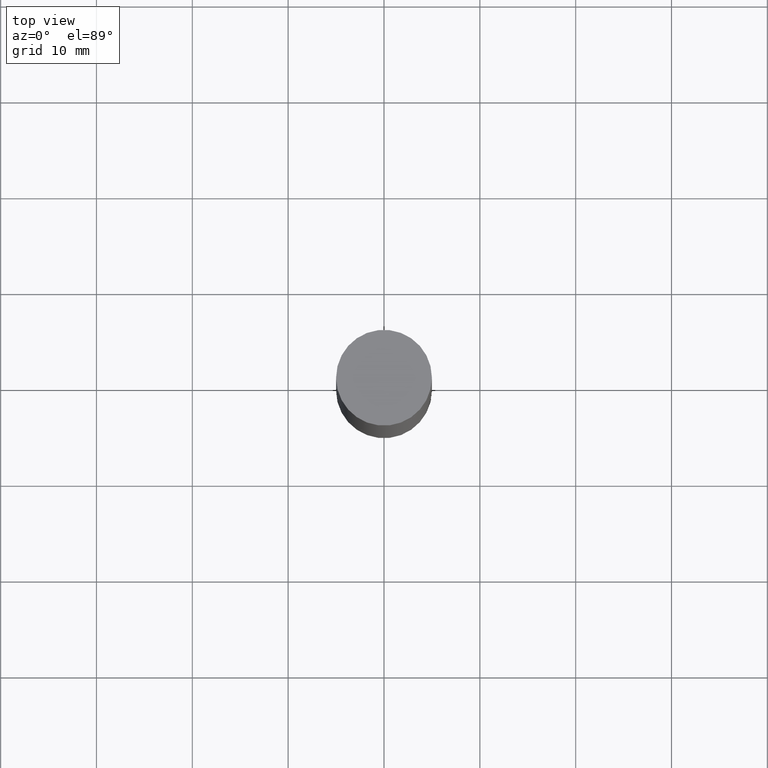
[diagram: clean part render]
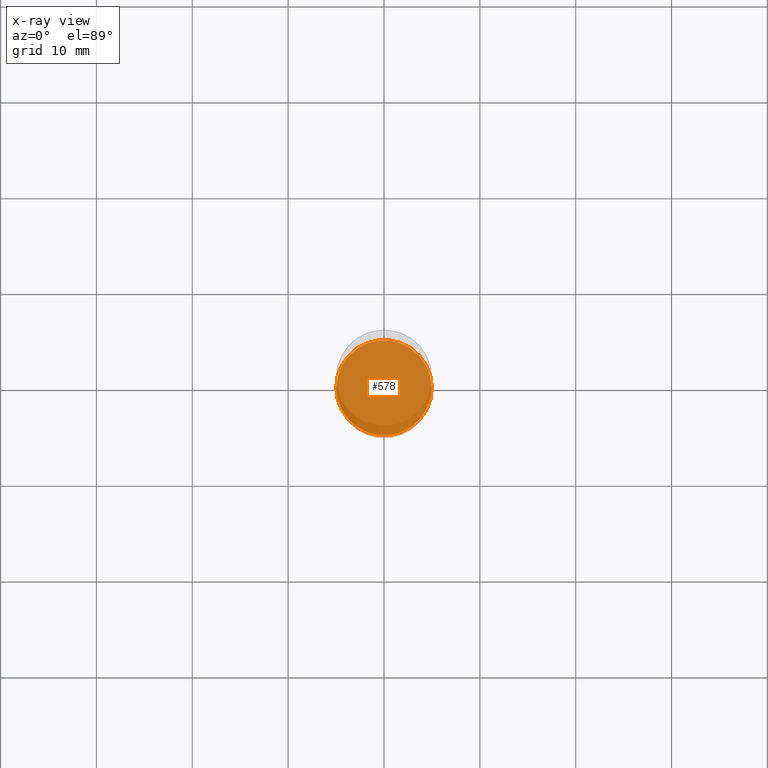
[diagram: x-ray — body ghosted, one internal face saturated and labeled with its STEP entity id]
A machine part, top view, then the same camera in x-ray: the body is ghosted and one INTERNAL B-rep face — a face not visible from any outside direction — is saturated and labeled: STEP entity #578.
In plain terms, the highlighted planar face has unit normal (-0, 0, 1).
Its self-contained STEP definition (entity closure, byte-faithful):
#59 = CARTESIAN_POINT ( 'NONE',  ( 0.1958499999999999963, -9.752754823790552857E-15, -2.401599999999999735 ) ) ;
#78 = FACE_OUTER_BOUND ( 'NONE', #323, .T. ) ;
#95 = AXIS2_PLACEMENT_3D ( 'NONE', #170, #388, #597 ) ;
#125 = DIRECTION ( 'NONE',  ( 1.000000000000000000, -6.982962677686265922E-15, 4.876176775795935793E-29 ) ) ;
#170 = CARTESIAN_POINT ( 'NONE',  ( 5.873037884934223228E-29, -8.385141583365697263E-15, -2.401599999999999735 ) ) ;
#200 = AXIS2_PLACEMENT_3D ( 'NONE', #419, #478, #677 ) ;
#254 = CIRCLE ( 'NONE', #95, 0.1958499999999999963 ) ;
#269 = ORIENTED_EDGE ( 'NONE', *, *, #360, .F. ) ;
#323 = EDGE_LOOP ( 'NONE', ( #480, #269 ) ) ;
#352 = CARTESIAN_POINT ( 'NONE',  ( 5.873037884934223228E-29, -8.385141583365697263E-15, -2.401599999999999735 ) ) ;
#360 = EDGE_CURVE ( 'NONE', #392, #491, #678, .T. ) ;
#388 = DIRECTION ( 'NONE',  ( -2.445468806185136597E-29, 3.491481338843145583E-15, 1.000000000000000000 ) ) ;
#392 = VERTEX_POINT ( 'NONE', #427 ) ;
#419 = CARTESIAN_POINT ( 'NONE',  ( 5.873037884934223228E-29, -8.385141583365697263E-15, -2.401599999999999735 ) ) ;
#427 = CARTESIAN_POINT ( 'NONE',  ( -0.1958499999999999963, -6.988245181031318870E-15, -2.401599999999999735 ) ) ;
#445 = AXIS2_PLACEMENT_3D ( 'NONE', #352, #662, #125 ) ;
#478 = DIRECTION ( 'NONE',  ( -2.445468806185136597E-29, 3.491481338843145583E-15, 1.000000000000000000 ) ) ;
#480 = ORIENTED_EDGE ( 'NONE', *, *, #523, .F. ) ;
#491 = VERTEX_POINT ( 'NONE', #59 ) ;
#523 = EDGE_CURVE ( 'NONE', #491, #392, #254, .T. ) ;
#553 = PLANE ( 'NONE',  #445 ) ;
#578 = ADVANCED_FACE ( 'NONE', ( #78 ), #553, .F. ) ;
#597 = DIRECTION ( 'NONE',  ( 1.000000000000000000, -6.982962677686262766E-15, 0.000000000000000000 ) ) ;
#662 = DIRECTION ( 'NONE',  ( -2.438088387897960049E-29, 3.491481338843145188E-15, 1.000000000000000000 ) ) ;
#677 = DIRECTION ( 'NONE',  ( 1.000000000000000000, -6.982962677686262766E-15, 0.000000000000000000 ) ) ;
#678 = CIRCLE ( 'NONE', #200, 0.1958499999999999963 ) ;